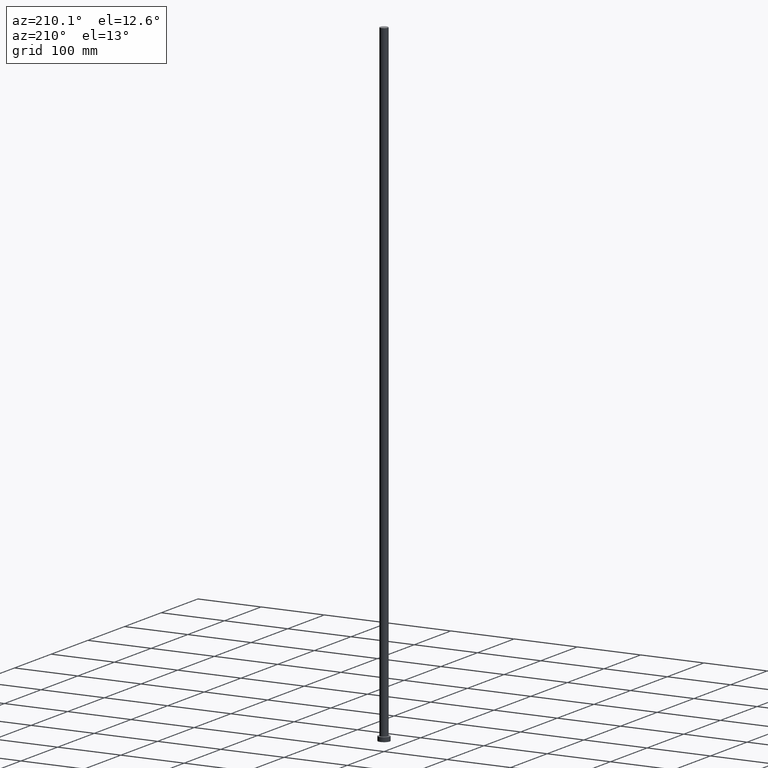
[diagram: clean part render]
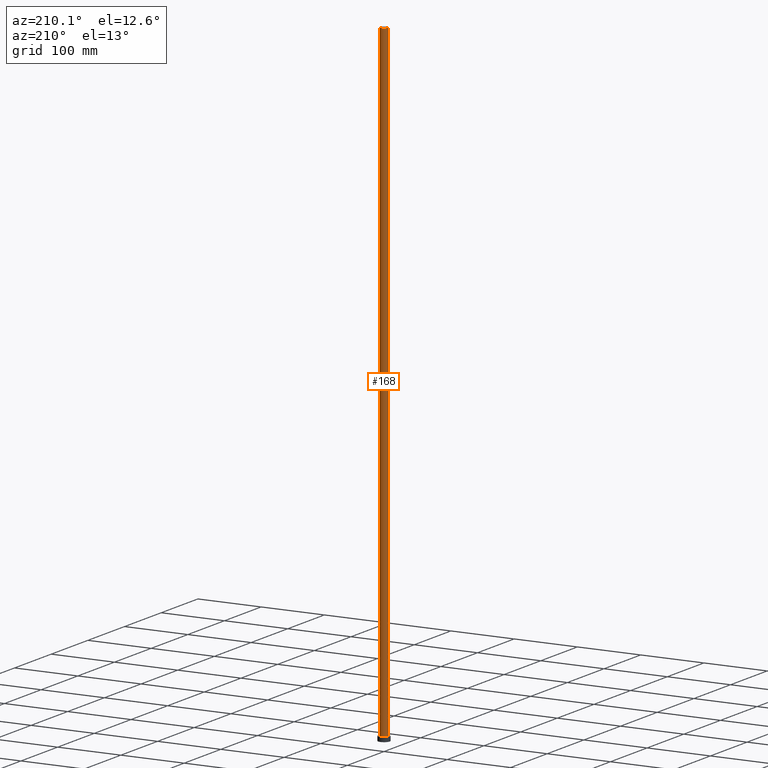
[diagram: same view with one face highlighted and labeled with its STEP entity id]
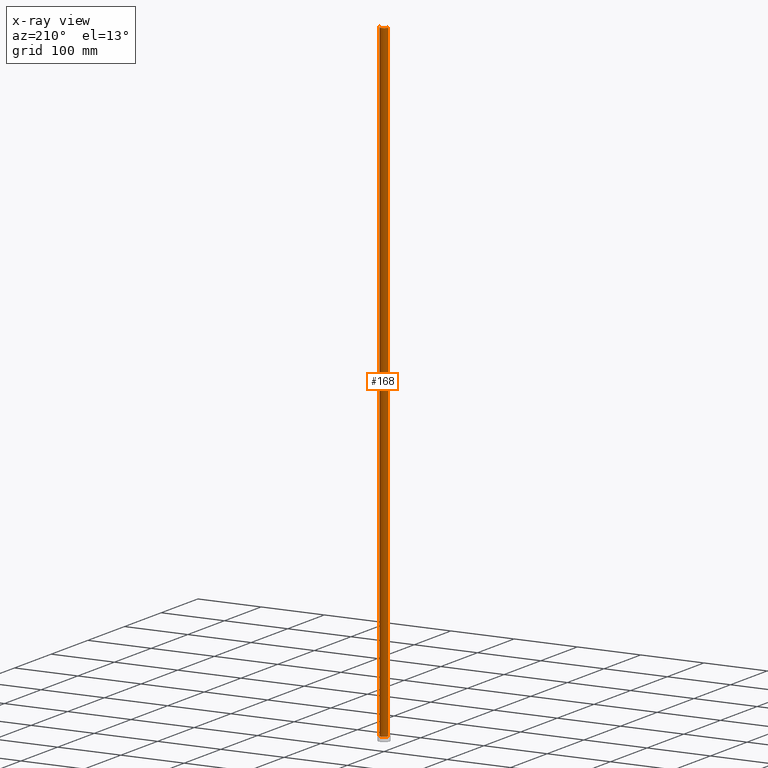
[diagram: x-ray of the same camera — body ghosted, the highlighted face saturated]
A machine part, auxiliary view. The second image highlights one B-rep face of the part: STEP entity #168.
The next image is the same camera in x-ray: the body ghosted, the highlighted face saturated — about 0% of this face is hidden behind the body in this view.
In plain terms, the highlighted cylindrical surface (edge-blend (fillet) strip) has radius 6.25 mm, axis along (-0, -0, -1).
Its self-contained STEP definition (entity closure, byte-faithful):
#2 = DIRECTION ( 'NONE',  ( 1.000000000000000000, 0.000000000000000000, 0.000000000000000000 ) ) ;
#3 = CARTESIAN_POINT ( 'NONE',  ( 0.000000000000000000, 0.000000000000000000, 1000.000000000000000 ) ) ;
#5 = VECTOR ( 'NONE', #145, 1000.000000000000000 ) ;
#7 = CARTESIAN_POINT ( 'NONE',  ( 6.250000000000000000, 7.654042494670957606E-16, 7.000000000000000000 ) ) ;
#23 = EDGE_CURVE ( 'NONE', #239, #63, #103, .T. ) ;
#24 = ORIENTED_EDGE ( 'NONE', *, *, #23, .T. ) ;
#27 = CARTESIAN_POINT ( 'NONE',  ( 6.250000000000000000, 7.654042494670957606E-16, 1000.000000000000000 ) ) ;
#42 = ORIENTED_EDGE ( 'NONE', *, *, #43, .T. ) ;
#43 = EDGE_CURVE ( 'NONE', #63, #138, #179, .T. ) ;
#63 = VERTEX_POINT ( 'NONE', #7 ) ;
#69 = VERTEX_POINT ( 'NONE', #85 ) ;
#84 = DIRECTION ( 'NONE',  ( -0.000000000000000000, -0.000000000000000000, -1.000000000000000000 ) ) ;
#85 = CARTESIAN_POINT ( 'NONE',  ( -6.250000000000000000, 0.000000000000000000, 1000.000000000000000 ) ) ;
#103 = LINE ( 'NONE', #27, #200 ) ;
#104 = CYLINDRICAL_SURFACE ( 'NONE', #188, 6.250000000000000000 ) ;
#106 = CARTESIAN_POINT ( 'NONE',  ( 6.250000000000000000, 7.654042494670957606E-16, 1000.000000000000000 ) ) ;
#114 = AXIS2_PLACEMENT_3D ( 'NONE', #160, #244, #122 ) ;
#122 = DIRECTION ( 'NONE',  ( 1.000000000000000000, 0.000000000000000000, 0.000000000000000000 ) ) ;
#125 = CARTESIAN_POINT ( 'NONE',  ( -6.250000000000000000, 0.000000000000000000, 7.000000000000000000 ) ) ;
#134 = ORIENTED_EDGE ( 'NONE', *, *, #159, .F. ) ;
#138 = VERTEX_POINT ( 'NONE', #125 ) ;
#145 = DIRECTION ( 'NONE',  ( -0.000000000000000000, -0.000000000000000000, -1.000000000000000000 ) ) ;
#152 = EDGE_CURVE ( 'NONE', #239, #69, #246, .T. ) ;
#159 = EDGE_CURVE ( 'NONE', #69, #138, #203, .T. ) ;
#160 = CARTESIAN_POINT ( 'NONE',  ( 0.000000000000000000, 0.000000000000000000, 1000.000000000000000 ) ) ;
#163 = CARTESIAN_POINT ( 'NONE',  ( -6.250000000000000000, 0.000000000000000000, 1000.000000000000000 ) ) ;
#168 = ADVANCED_FACE ( 'NONE', ( #204 ), #104, .T. ) ;
#179 = CIRCLE ( 'NONE', #236, 6.250000000000000000 ) ;
#188 = AXIS2_PLACEMENT_3D ( 'NONE', #3, #201, #225 ) ;
#197 = EDGE_LOOP ( 'NONE', ( #253, #24, #42, #134 ) ) ;
#200 = VECTOR ( 'NONE', #84, 1000.000000000000000 ) ;
#201 = DIRECTION ( 'NONE',  ( -0.000000000000000000, -0.000000000000000000, -1.000000000000000000 ) ) ;
#202 = DIRECTION ( 'NONE',  ( 0.000000000000000000, 0.000000000000000000, 1.000000000000000000 ) ) ;
#203 = LINE ( 'NONE', #163, #5 ) ;
#204 = FACE_OUTER_BOUND ( 'NONE', #197, .T. ) ;
#225 = DIRECTION ( 'NONE',  ( -1.000000000000000000, 0.000000000000000000, 0.000000000000000000 ) ) ;
#236 = AXIS2_PLACEMENT_3D ( 'NONE', #245, #202, #2 ) ;
#239 = VERTEX_POINT ( 'NONE', #106 ) ;
#244 = DIRECTION ( 'NONE',  ( 0.000000000000000000, 0.000000000000000000, 1.000000000000000000 ) ) ;
#245 = CARTESIAN_POINT ( 'NONE',  ( 0.000000000000000000, 0.000000000000000000, 7.000000000000000000 ) ) ;
#246 = CIRCLE ( 'NONE', #114, 6.250000000000000000 ) ;
#253 = ORIENTED_EDGE ( 'NONE', *, *, #152, .F. ) ;